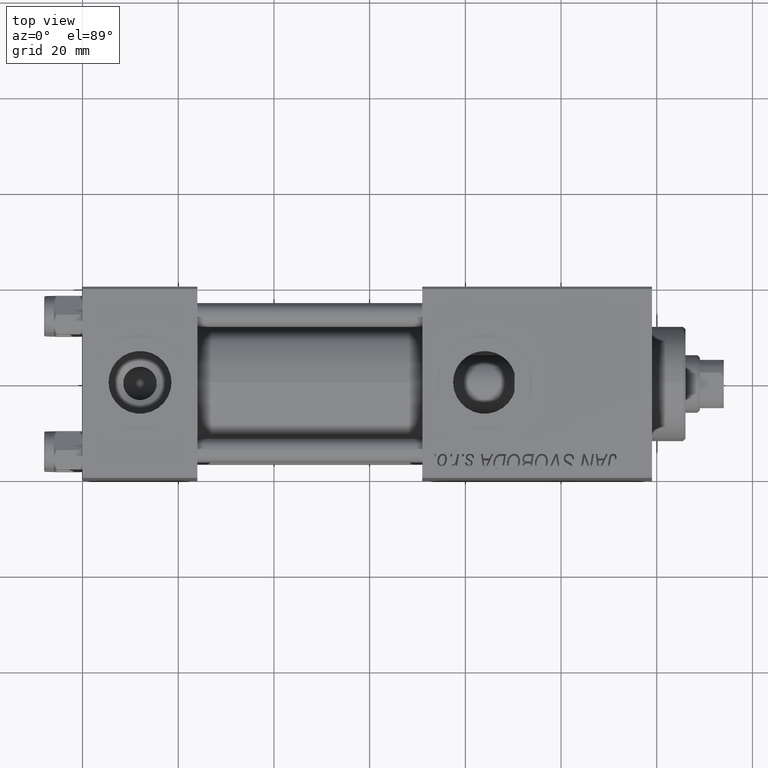
[diagram: clean part render]
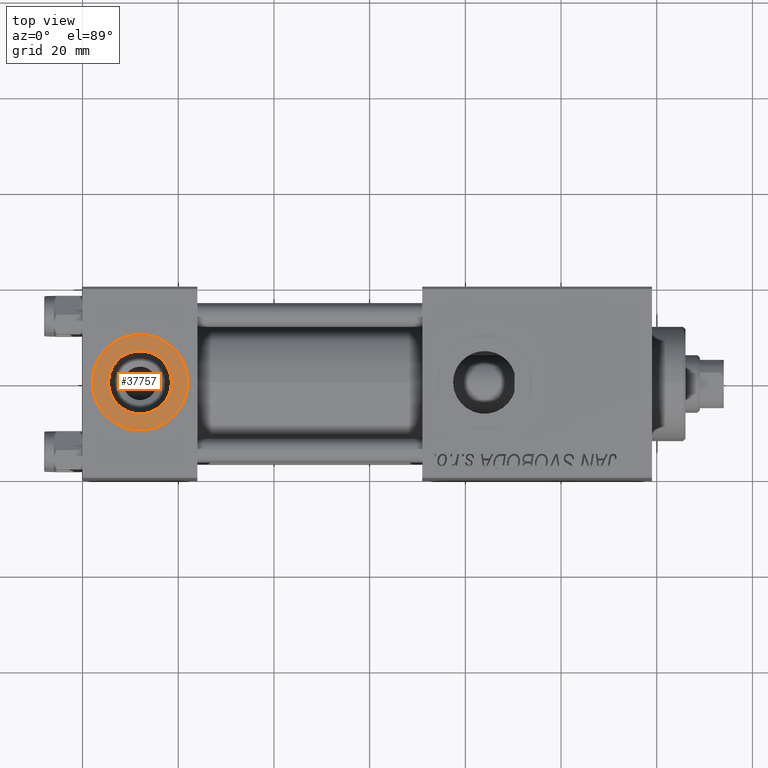
[diagram: same view with one face highlighted and labeled with its STEP entity id]
A machine part, top view. The second image highlights one B-rep face of the part: STEP entity #37757.
In plain terms, the highlighted planar face has unit normal (0, 0, 1).
Its self-contained STEP definition (entity closure, byte-faithful):
#2637 = AXIS2_PLACEMENT_3D ( 'NONE', #8939, #40866, #24424 ) ;
#2673 = VERTEX_POINT ( 'NONE', #49738 ) ;
#5931 = EDGE_LOOP ( 'NONE', ( #19823, #19528 ) ) ;
#6596 = PLANE ( 'NONE',  #36415 ) ;
#7500 = CARTESIAN_POINT ( 'NONE',  ( 12.00000000000000000, 1.540743955509788682E-30, 19.79999999999999716 ) ) ;
#8939 = CARTESIAN_POINT ( 'NONE',  ( 12.00000000000000000, 1.540743955509788682E-30, 19.79999999999999716 ) ) ;
#9611 = CIRCLE ( 'NONE', #39655, 9.999999999999998224 ) ;
#15399 = DIRECTION ( 'NONE',  ( 1.000000000000000000, 0.000000000000000000, 0.000000000000000000 ) ) ;
#15697 = AXIS2_PLACEMENT_3D ( 'NONE', #35885, #43265, #16562 ) ;
#16562 = DIRECTION ( 'NONE',  ( 1.000000000000000000, 0.000000000000000000, 0.000000000000000000 ) ) ;
#17025 = CARTESIAN_POINT ( 'NONE',  ( 18.57999999999999829, 1.540743955509788682E-30, 19.79999999999999716 ) ) ;
#17492 = EDGE_CURVE ( 'NONE', #31733, #25098, #47392, .T. ) ;
#18026 = DIRECTION ( 'NONE',  ( 1.000000000000000000, 0.000000000000000000, -0.000000000000000000 ) ) ;
#18306 = AXIS2_PLACEMENT_3D ( 'NONE', #7500, #18677, #45629 ) ;
#18677 = DIRECTION ( 'NONE',  ( 0.000000000000000000, 0.000000000000000000, 1.000000000000000000 ) ) ;
#19265 = EDGE_CURVE ( 'NONE', #2673, #22759, #37551, .T. ) ;
#19528 = ORIENTED_EDGE ( 'NONE', *, *, #17492, .F. ) ;
#19823 = ORIENTED_EDGE ( 'NONE', *, *, #45218, .F. ) ;
#20419 = CARTESIAN_POINT ( 'NONE',  ( 5.420000000000000817, 8.058175938389596335E-16, 19.79999999999999716 ) ) ;
#22759 = VERTEX_POINT ( 'NONE', #23399 ) ;
#23399 = CARTESIAN_POINT ( 'NONE',  ( 2.000000000000003553, 1.224646799147354440E-15, 19.79999999999999716 ) ) ;
#24424 = DIRECTION ( 'NONE',  ( 1.000000000000000000, 0.000000000000000000, 0.000000000000000000 ) ) ;
#25098 = VERTEX_POINT ( 'NONE', #17025 ) ;
#30468 = CARTESIAN_POINT ( 'NONE',  ( 12.00000000000000000, 1.540743955509788682E-30, 19.79999999999999716 ) ) ;
#30542 = EDGE_LOOP ( 'NONE', ( #46521, #41402 ) ) ;
#31733 = VERTEX_POINT ( 'NONE', #20419 ) ;
#35220 = CARTESIAN_POINT ( 'NONE',  ( 12.00000000000000000, 1.540743955509788682E-30, 19.79999999999999716 ) ) ;
#35885 = CARTESIAN_POINT ( 'NONE',  ( 12.00000000000000000, 1.540743955509788682E-30, 19.79999999999999716 ) ) ;
#36415 = AXIS2_PLACEMENT_3D ( 'NONE', #30468, #37849, #18026 ) ;
#36715 = EDGE_CURVE ( 'NONE', #22759, #2673, #9611, .T. ) ;
#37551 = CIRCLE ( 'NONE', #2637, 9.999999999999998224 ) ;
#37757 = ADVANCED_FACE ( 'NONE', ( #41172, #41911 ), #6596, .T. ) ;
#37849 = DIRECTION ( 'NONE',  ( 0.000000000000000000, 0.000000000000000000, 1.000000000000000000 ) ) ;
#39655 = AXIS2_PLACEMENT_3D ( 'NONE', #35220, #50230, #15399 ) ;
#40218 = CIRCLE ( 'NONE', #18306, 6.579999999999999183 ) ;
#40866 = DIRECTION ( 'NONE',  ( 0.000000000000000000, 0.000000000000000000, 1.000000000000000000 ) ) ;
#41172 = FACE_BOUND ( 'NONE', #5931, .T. ) ;
#41402 = ORIENTED_EDGE ( 'NONE', *, *, #36715, .T. ) ;
#41911 = FACE_OUTER_BOUND ( 'NONE', #30542, .T. ) ;
#43265 = DIRECTION ( 'NONE',  ( 0.000000000000000000, 0.000000000000000000, 1.000000000000000000 ) ) ;
#45218 = EDGE_CURVE ( 'NONE', #25098, #31733, #40218, .T. ) ;
#45629 = DIRECTION ( 'NONE',  ( 1.000000000000000000, 0.000000000000000000, 0.000000000000000000 ) ) ;
#46521 = ORIENTED_EDGE ( 'NONE', *, *, #19265, .T. ) ;
#47392 = CIRCLE ( 'NONE', #15697, 6.579999999999999183 ) ;
#49738 = CARTESIAN_POINT ( 'NONE',  ( 22.00000000000000000, 1.540743955509788682E-30, 19.79999999999999716 ) ) ;
#50230 = DIRECTION ( 'NONE',  ( 0.000000000000000000, 0.000000000000000000, 1.000000000000000000 ) ) ;